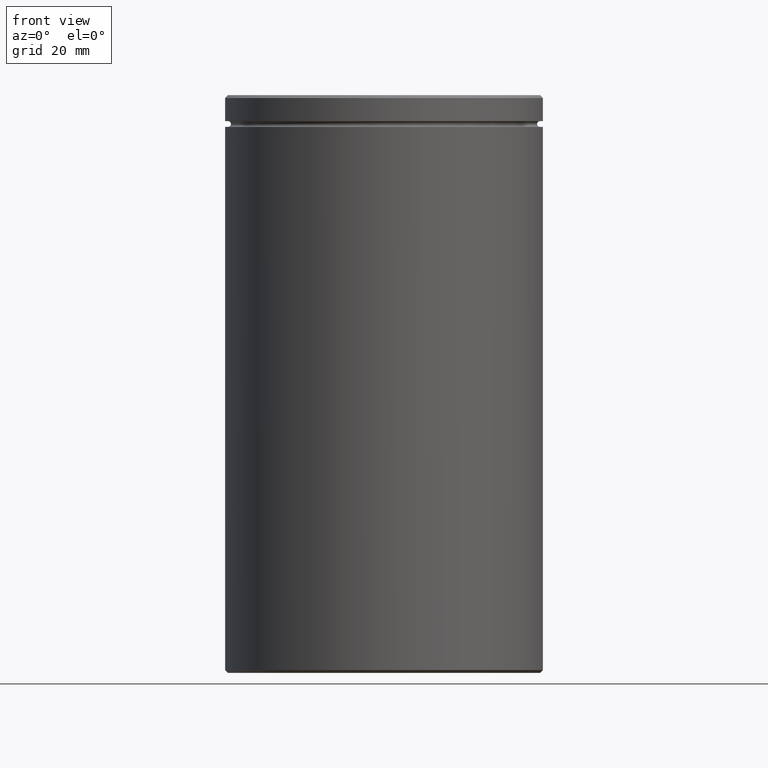
[diagram: clean part render]
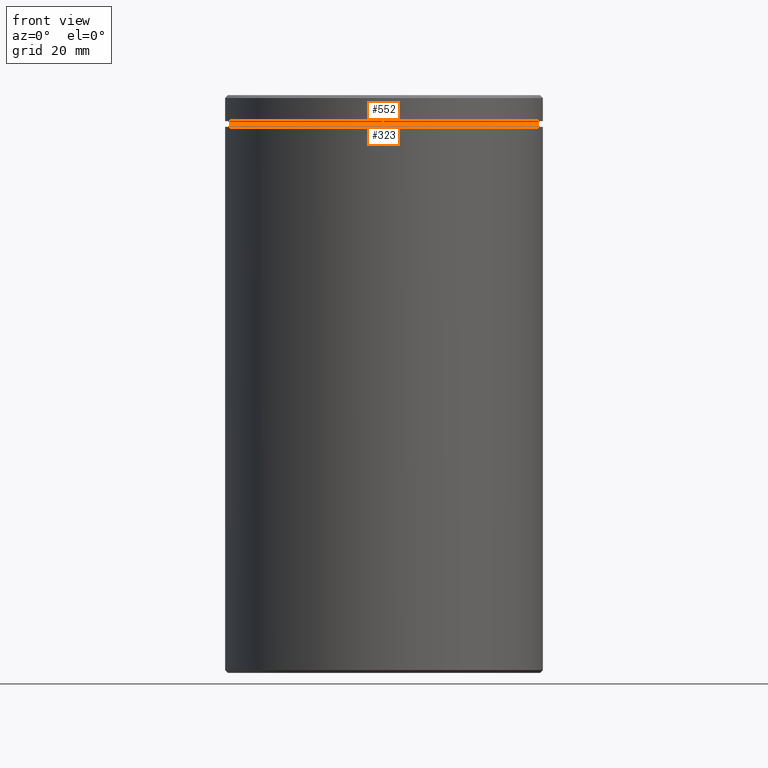
[diagram: same view with one multi-face feature highlighted, each face labeled with its STEP entity id]
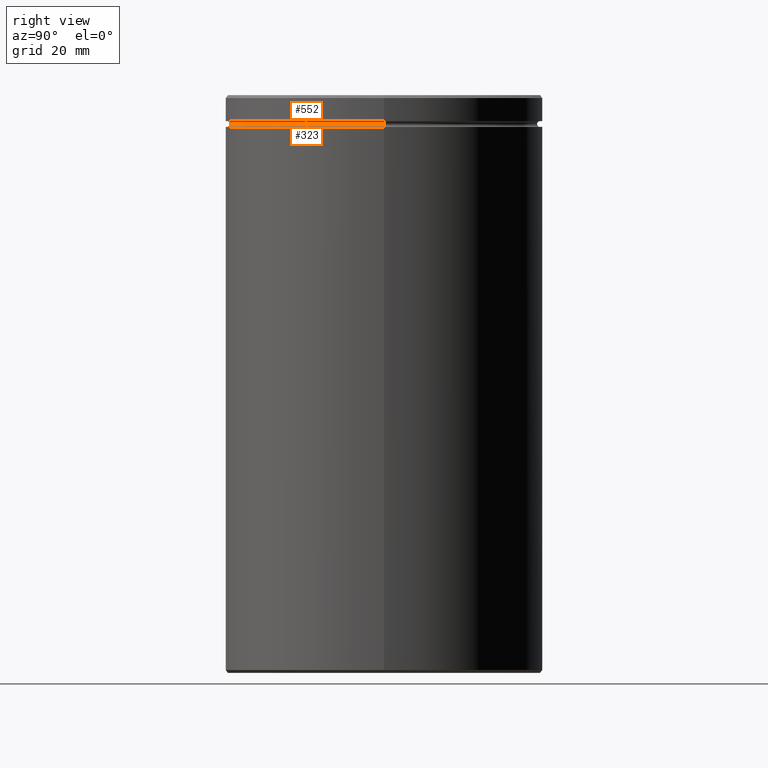
[diagram: same view with one multi-face feature highlighted, each face labeled with its STEP entity id]
A machine part, front view. The highlighted faces form ONE feature: a constant-radius fillet chain: 2 tangent blend faces with common blend radius 0.5 mm. The faces share edges in the B-rep.
A second angle (right view) of the same feature is appended — it is thin or edge-on in the first view.
Their STEP definitions:
[1] entity #552 (Torus):
#5 = DIRECTION ( 'NONE',  ( -0.000000000000000000, -0.000000000000000000, 1.000000000000000000 ) ) ;
#8 = CARTESIAN_POINT ( 'NONE',  ( -27.00000000000000000, 0.000000000000000000, -5.000000000000000888 ) ) ;
#16 = CARTESIAN_POINT ( 'NONE',  ( 27.00000000000000000, 3.306546357697854128E-15, -4.500000000000000888 ) ) ;
#18 = AXIS2_PLACEMENT_3D ( 'NONE', #231, #5, #434 ) ;
#21 = CARTESIAN_POINT ( 'NONE',  ( 27.00000000000000000, 3.306546357697853733E-15, -5.000000000000000888 ) ) ;
#25 = CIRCLE ( 'NONE', #247, 0.5000000000000004441 ) ;
#29 = ORIENTED_EDGE ( 'NONE', *, *, #366, .T. ) ;
#58 = VERTEX_POINT ( 'NONE', #16 ) ;
#87 = DIRECTION ( 'NONE',  ( -0.000000000000000000, -1.000000000000000000, -0.000000000000000000 ) ) ;
#88 = CIRCLE ( 'NONE', #167, 0.5000000000000004441 ) ;
#130 = CARTESIAN_POINT ( 'NONE',  ( -27.00000000000000000, 0.000000000000000000, -4.500000000000000888 ) ) ;
#136 = EDGE_CURVE ( 'NONE', #206, #524, #176, .T. ) ;
#154 = DIRECTION ( 'NONE',  ( -0.000000000000000000, -0.000000000000000000, 1.000000000000000000 ) ) ;
#165 = ORIENTED_EDGE ( 'NONE', *, *, #240, .F. ) ;
#167 = AXIS2_PLACEMENT_3D ( 'NONE', #8, #87, #275 ) ;
#176 = CIRCLE ( 'NONE', #362, 26.50000000000000000 ) ;
#188 = DIRECTION ( 'NONE',  ( 0.000000000000000000, 0.000000000000000000, -1.000000000000000000 ) ) ;
#204 = DIRECTION ( 'NONE',  ( -1.000000000000000000, -1.224646799147349509E-16, 0.000000000000000000 ) ) ;
#206 = VERTEX_POINT ( 'NONE', #249 ) ;
#213 = CIRCLE ( 'NONE', #18, 27.00000000000000000 ) ;
#231 = CARTESIAN_POINT ( 'NONE',  ( 0.000000000000000000, 0.000000000000000000, -4.500000000000000888 ) ) ;
#240 = EDGE_CURVE ( 'NONE', #206, #477, #88, .T. ) ;
#247 = AXIS2_PLACEMENT_3D ( 'NONE', #21, #417, #204 ) ;
#249 = CARTESIAN_POINT ( 'NONE',  ( -26.50000000000000000, 3.275930187719169552E-15, -4.999999999999999112 ) ) ;
#269 = EDGE_LOOP ( 'NONE', ( #505, #29, #405, #165 ) ) ;
#275 = DIRECTION ( 'NONE',  ( 0.000000000000000000, 0.000000000000000000, -1.000000000000000000 ) ) ;
#307 = FACE_OUTER_BOUND ( 'NONE', #269, .T. ) ;
#324 = DIRECTION ( 'NONE',  ( 1.000000000000000000, 0.000000000000000000, 0.000000000000000000 ) ) ;
#362 = AXIS2_PLACEMENT_3D ( 'NONE', #546, #154, #324 ) ;
#366 = EDGE_CURVE ( 'NONE', #524, #58, #25, .T. ) ;
#391 = AXIS2_PLACEMENT_3D ( 'NONE', #493, #188, #482 ) ;
#401 = TOROIDAL_SURFACE ( 'NONE', #391, 27.00000000000000000, 0.5000000000000000000 ) ;
#405 = ORIENTED_EDGE ( 'NONE', *, *, #495, .F. ) ;
#417 = DIRECTION ( 'NONE',  ( -1.224646799147353207E-16, 1.000000000000000000, 0.000000000000000000 ) ) ;
#434 = DIRECTION ( 'NONE',  ( -1.000000000000000000, 0.000000000000000000, 0.000000000000000000 ) ) ;
#477 = VERTEX_POINT ( 'NONE', #130 ) ;
#482 = DIRECTION ( 'NONE',  ( -1.000000000000000000, 0.000000000000000000, 0.000000000000000000 ) ) ;
#493 = CARTESIAN_POINT ( 'NONE',  ( 0.000000000000000000, 0.000000000000000000, -5.000000000000000888 ) ) ;
#495 = EDGE_CURVE ( 'NONE', #477, #58, #213, .T. ) ;
#505 = ORIENTED_EDGE ( 'NONE', *, *, #136, .T. ) ;
#523 = CARTESIAN_POINT ( 'NONE',  ( 26.50000000000000000, 0.000000000000000000, -4.999999999999999112 ) ) ;
#524 = VERTEX_POINT ( 'NONE', #523 ) ;
#546 = CARTESIAN_POINT ( 'NONE',  ( 0.000000000000000000, 0.000000000000000000, -4.999999999999999112 ) ) ;
#552 = ADVANCED_FACE ( 'NONE', ( #307 ), #401, .F. ) ;
[2] entity #323 (Torus):
#30 = EDGE_CURVE ( 'NONE', #524, #491, #184, .T. ) ;
#54 = CARTESIAN_POINT ( 'NONE',  ( 0.000000000000000000, 0.000000000000000000, -4.999999999999999112 ) ) ;
#69 = EDGE_LOOP ( 'NONE', ( #160, #186, #425, #384 ) ) ;
#93 = CARTESIAN_POINT ( 'NONE',  ( -27.00000000000000000, 3.306546357697853733E-15, -4.999999999999999112 ) ) ;
#100 = CIRCLE ( 'NONE', #558, 27.00000000000000000 ) ;
#132 = DIRECTION ( 'NONE',  ( -1.000000000000000000, 1.224646799147349509E-16, 0.000000000000000000 ) ) ;
#136 = EDGE_CURVE ( 'NONE', #206, #524, #176, .T. ) ;
#141 = FACE_OUTER_BOUND ( 'NONE', #69, .T. ) ;
#154 = DIRECTION ( 'NONE',  ( -0.000000000000000000, -0.000000000000000000, 1.000000000000000000 ) ) ;
#160 = ORIENTED_EDGE ( 'NONE', *, *, #136, .F. ) ;
#176 = CIRCLE ( 'NONE', #362, 26.50000000000000000 ) ;
#184 = CIRCLE ( 'NONE', #466, 0.5000000000000004441 ) ;
#186 = ORIENTED_EDGE ( 'NONE', *, *, #331, .T. ) ;
#206 = VERTEX_POINT ( 'NONE', #249 ) ;
#215 = CARTESIAN_POINT ( 'NONE',  ( 0.000000000000000000, 0.000000000000000000, -5.500000000000000000 ) ) ;
#233 = DIRECTION ( 'NONE',  ( -0.000000000000000000, -0.000000000000000000, 1.000000000000000000 ) ) ;
#244 = DIRECTION ( 'NONE',  ( 0.000000000000000000, -1.000000000000000000, 0.000000000000000000 ) ) ;
#249 = CARTESIAN_POINT ( 'NONE',  ( -26.50000000000000000, 3.275930187719169552E-15, -4.999999999999999112 ) ) ;
#271 = DIRECTION ( 'NONE',  ( 1.000000000000000000, 0.000000000000000000, 0.000000000000000000 ) ) ;
#272 = CARTESIAN_POINT ( 'NONE',  ( 27.00000000000000000, 0.000000000000000000, -5.500000000000000000 ) ) ;
#273 = CARTESIAN_POINT ( 'NONE',  ( 27.00000000000000000, 0.000000000000000000, -4.999999999999999112 ) ) ;
#277 = CIRCLE ( 'NONE', #497, 0.5000000000000004441 ) ;
#311 = TOROIDAL_SURFACE ( 'NONE', #520, 27.00000000000000000, 0.5000000000000000000 ) ;
#323 = ADVANCED_FACE ( 'NONE', ( #141 ), #311, .F. ) ;
#324 = DIRECTION ( 'NONE',  ( 1.000000000000000000, 0.000000000000000000, 0.000000000000000000 ) ) ;
#331 = EDGE_CURVE ( 'NONE', #206, #435, #277, .T. ) ;
#362 = AXIS2_PLACEMENT_3D ( 'NONE', #546, #154, #324 ) ;
#384 = ORIENTED_EDGE ( 'NONE', *, *, #30, .F. ) ;
#404 = DIRECTION ( 'NONE',  ( 1.224646799147353207E-16, 1.000000000000000000, 0.000000000000000000 ) ) ;
#416 = DIRECTION ( 'NONE',  ( 0.000000000000000000, 0.000000000000000000, -1.000000000000000000 ) ) ;
#424 = DIRECTION ( 'NONE',  ( 1.000000000000000000, 0.000000000000000000, 0.000000000000000000 ) ) ;
#425 = ORIENTED_EDGE ( 'NONE', *, *, #438, .F. ) ;
#435 = VERTEX_POINT ( 'NONE', #521 ) ;
#438 = EDGE_CURVE ( 'NONE', #491, #435, #100, .T. ) ;
#466 = AXIS2_PLACEMENT_3D ( 'NONE', #273, #244, #416 ) ;
#491 = VERTEX_POINT ( 'NONE', #272 ) ;
#497 = AXIS2_PLACEMENT_3D ( 'NONE', #93, #404, #132 ) ;
#520 = AXIS2_PLACEMENT_3D ( 'NONE', #54, #233, #271 ) ;
#521 = CARTESIAN_POINT ( 'NONE',  ( -27.00000000000000000, 3.306546357697854128E-15, -5.500000000000000000 ) ) ;
#523 = CARTESIAN_POINT ( 'NONE',  ( 26.50000000000000000, 0.000000000000000000, -4.999999999999999112 ) ) ;
#524 = VERTEX_POINT ( 'NONE', #523 ) ;
#546 = CARTESIAN_POINT ( 'NONE',  ( 0.000000000000000000, 0.000000000000000000, -4.999999999999999112 ) ) ;
#554 = DIRECTION ( 'NONE',  ( 0.000000000000000000, 0.000000000000000000, -1.000000000000000000 ) ) ;
#558 = AXIS2_PLACEMENT_3D ( 'NONE', #215, #554, #424 ) ;